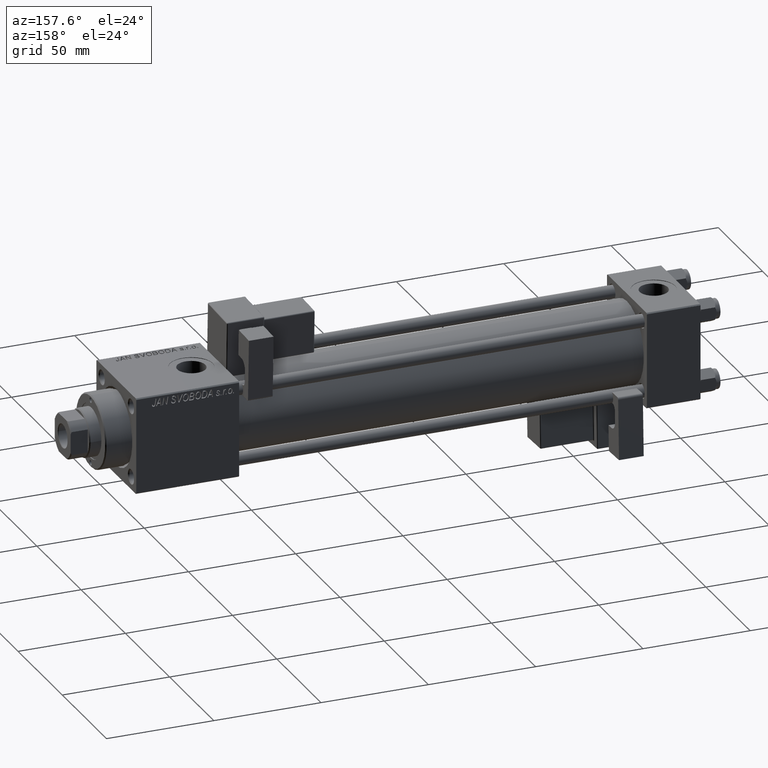
[diagram: clean part render]
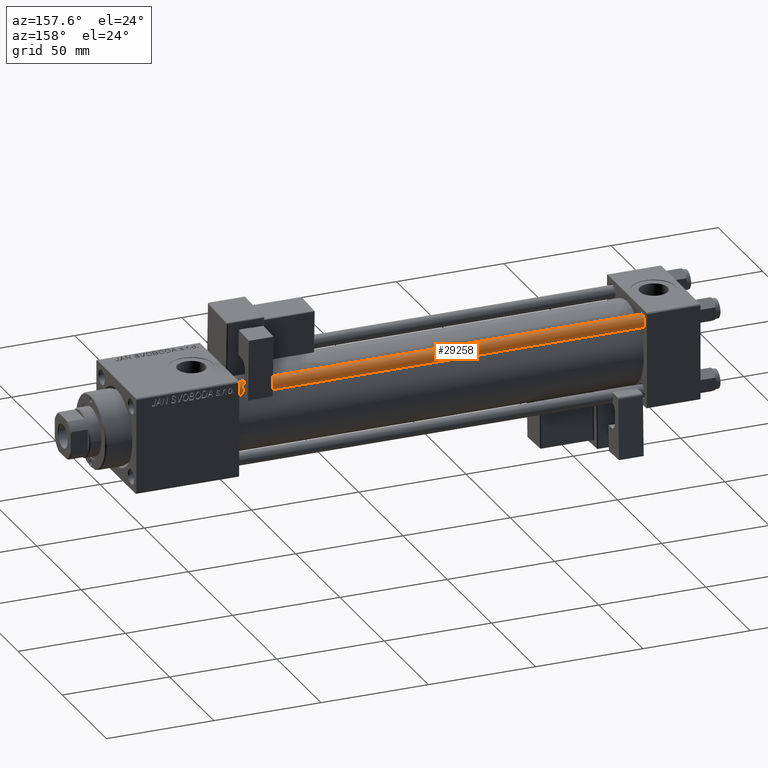
[diagram: same view with one face highlighted and labeled with its STEP entity id]
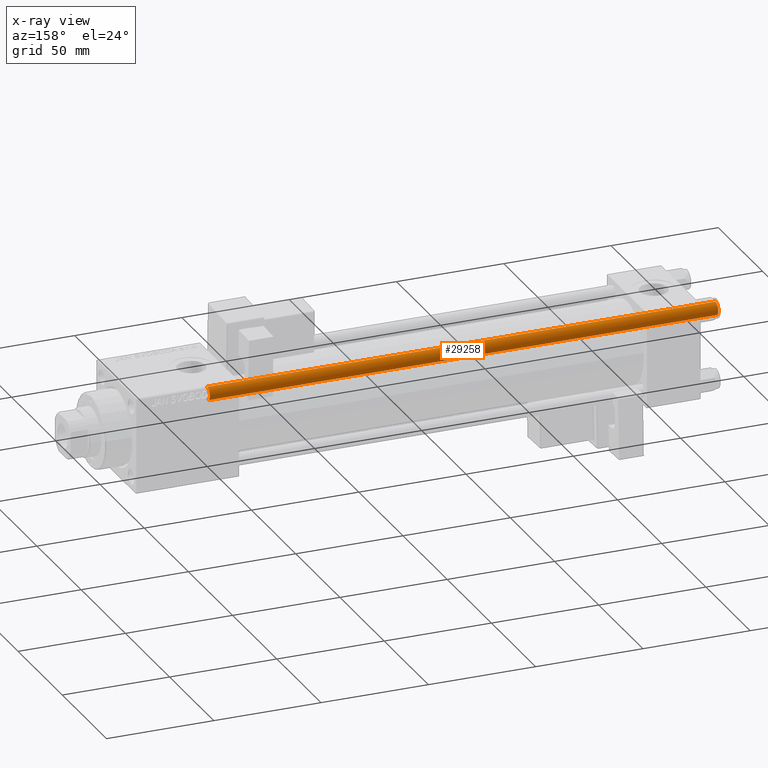
[diagram: x-ray of the same camera — body ghosted, the highlighted face saturated]
A machine part, auxiliary view. The second image highlights one B-rep face of the part: STEP entity #29258.
The next image is the same camera in x-ray: the body ghosted, the highlighted face saturated — about 0% of this face is hidden behind the body in this view.
In plain terms, the highlighted cylindrical surface (edge-blend (fillet) strip) has radius 3 mm, axis along (-1, 0, 0).
Its self-contained STEP definition (entity closure, byte-faithful):
#520 = AXIS2_PLACEMENT_3D ( 'NONE', #37179, #8086, #33093 ) ;
#4891 = CYLINDRICAL_SURFACE ( 'NONE', #29535, 3.000000000000000444 ) ;
#8086 = DIRECTION ( 'NONE',  ( 0.000000000000000000, 0.000000000000000000, -1.000000000000000000 ) ) ;
#8764 = ORIENTED_EDGE ( 'NONE', *, *, #31053, .T. ) ;
#9105 = DIRECTION ( 'NONE',  ( -0.000000000000000000, -0.000000000000000000, -1.000000000000000000 ) ) ;
#9402 = ORIENTED_EDGE ( 'NONE', *, *, #18340, .F. ) ;
#10394 = CARTESIAN_POINT ( 'NONE',  ( 3.000000000000000444, 3.673940397442060361E-16, 238.0000000000000000 ) ) ;
#15227 = VERTEX_POINT ( 'NONE', #51899 ) ;
#15290 = CIRCLE ( 'NONE', #52619, 3.000000000000000444 ) ;
#17944 = FACE_OUTER_BOUND ( 'NONE', #44434, .T. ) ;
#18340 = EDGE_CURVE ( 'NONE', #23438, #15227, #45816, .T. ) ;
#21905 = VERTEX_POINT ( 'NONE', #39706 ) ;
#23438 = VERTEX_POINT ( 'NONE', #35106 ) ;
#26675 = ORIENTED_EDGE ( 'NONE', *, *, #46224, .T. ) ;
#29258 = ADVANCED_FACE ( 'NONE', ( #17944 ), #4891, .T. ) ;
#29535 = AXIS2_PLACEMENT_3D ( 'NONE', #30456, #38071, #47028 ) ;
#30456 = CARTESIAN_POINT ( 'NONE',  ( 0.000000000000000000, 0.000000000000000000, 238.0000000000000000 ) ) ;
#31052 = LINE ( 'NONE', #10394, #46096 ) ;
#31053 = EDGE_CURVE ( 'NONE', #21905, #41218, #31052, .T. ) ;
#33093 = DIRECTION ( 'NONE',  ( 1.000000000000000000, 0.000000000000000000, 0.000000000000000000 ) ) ;
#35106 = CARTESIAN_POINT ( 'NONE',  ( -3.000000000000000444, 0.000000000000000000, 237.5000000000000284 ) ) ;
#37111 = CARTESIAN_POINT ( 'NONE',  ( 0.000000000000000000, 0.000000000000000000, 0.5000000000000281997 ) ) ;
#37179 = CARTESIAN_POINT ( 'NONE',  ( 0.000000000000000000, 0.000000000000000000, 237.5000000000000284 ) ) ;
#37490 = CARTESIAN_POINT ( 'NONE',  ( 3.000000000000000444, 3.673940397442060361E-16, 0.5000000000000281997 ) ) ;
#38071 = DIRECTION ( 'NONE',  ( -0.000000000000000000, -0.000000000000000000, -1.000000000000000000 ) ) ;
#39706 = CARTESIAN_POINT ( 'NONE',  ( 3.000000000000000444, 3.673940397442060361E-16, 237.5000000000000284 ) ) ;
#40118 = ORIENTED_EDGE ( 'NONE', *, *, #45828, .T. ) ;
#41218 = VERTEX_POINT ( 'NONE', #37490 ) ;
#44434 = EDGE_LOOP ( 'NONE', ( #40118, #8764, #26675, #9402 ) ) ;
#45816 = LINE ( 'NONE', #46348, #47903 ) ;
#45828 = EDGE_CURVE ( 'NONE', #23438, #21905, #46562, .T. ) ;
#46096 = VECTOR ( 'NONE', #48173, 1000.000000000000000 ) ;
#46224 = EDGE_CURVE ( 'NONE', #41218, #15227, #15290, .T. ) ;
#46348 = CARTESIAN_POINT ( 'NONE',  ( -3.000000000000000444, 0.000000000000000000, 238.0000000000000000 ) ) ;
#46562 = CIRCLE ( 'NONE', #520, 3.000000000000000444 ) ;
#47028 = DIRECTION ( 'NONE',  ( -1.000000000000000000, 0.000000000000000000, 0.000000000000000000 ) ) ;
#47903 = VECTOR ( 'NONE', #9105, 1000.000000000000000 ) ;
#48173 = DIRECTION ( 'NONE',  ( -0.000000000000000000, -0.000000000000000000, -1.000000000000000000 ) ) ;
#48809 = DIRECTION ( 'NONE',  ( 1.000000000000000000, 0.000000000000000000, 0.000000000000000000 ) ) ;
#51899 = CARTESIAN_POINT ( 'NONE',  ( -3.000000000000000444, 0.000000000000000000, 0.5000000000000281997 ) ) ;
#52619 = AXIS2_PLACEMENT_3D ( 'NONE', #37111, #52895, #48809 ) ;
#52895 = DIRECTION ( 'NONE',  ( -0.000000000000000000, -0.000000000000000000, 1.000000000000000000 ) ) ;